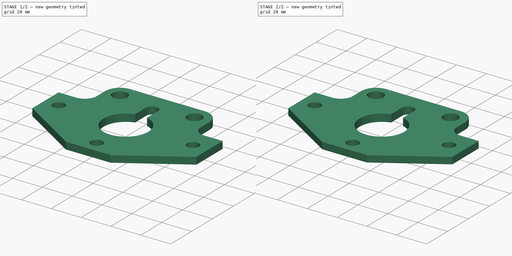
[diagram: build sequence overview — one tinted view per stage of 2, left to right]
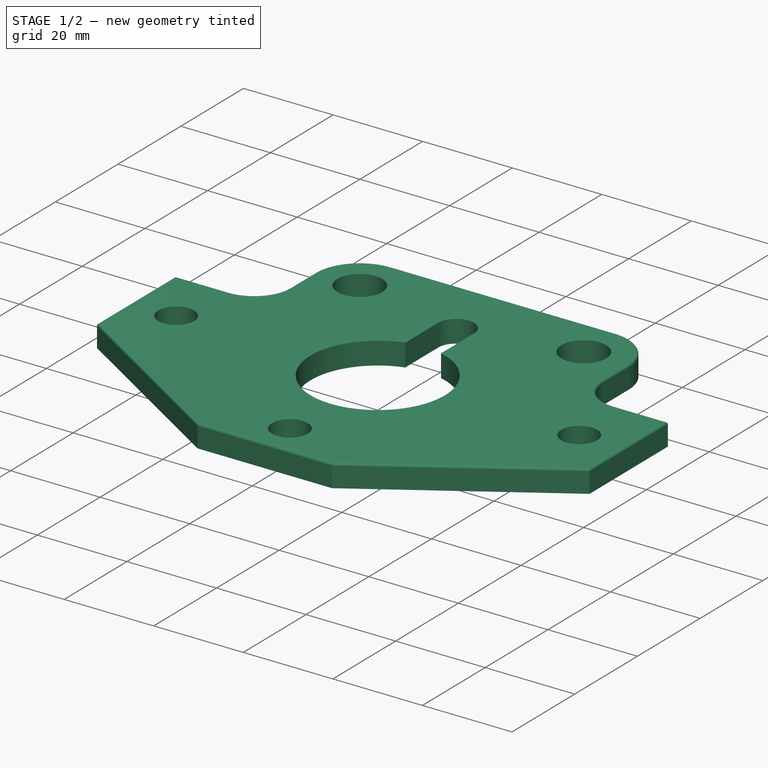
[diagram: stage 1 of 2 — iso view after this stage's code; geometry added in this stage tinted green]
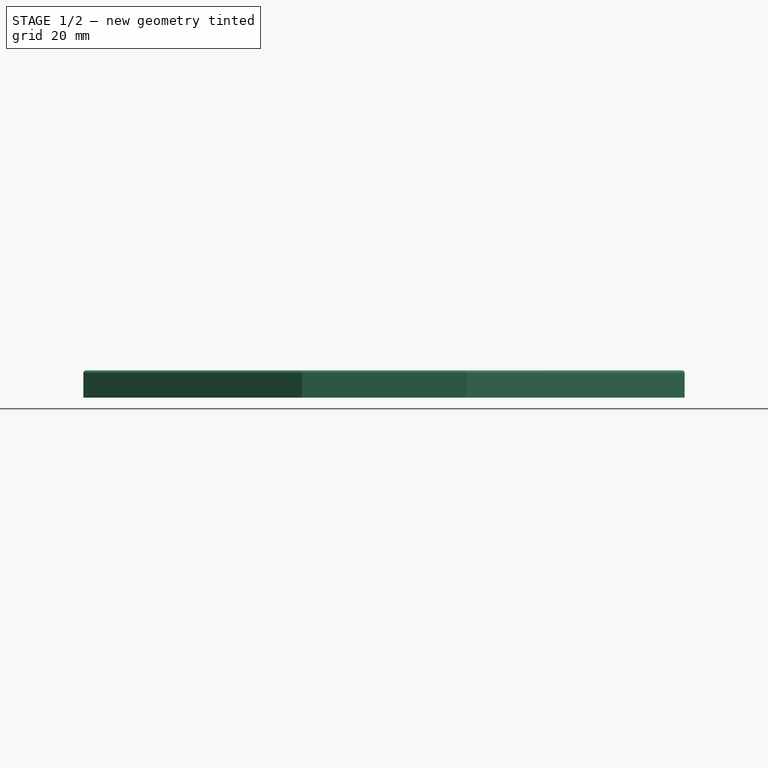
[diagram: stage 1 of 2 — front view after this stage's code; geometry added in this stage tinted green]
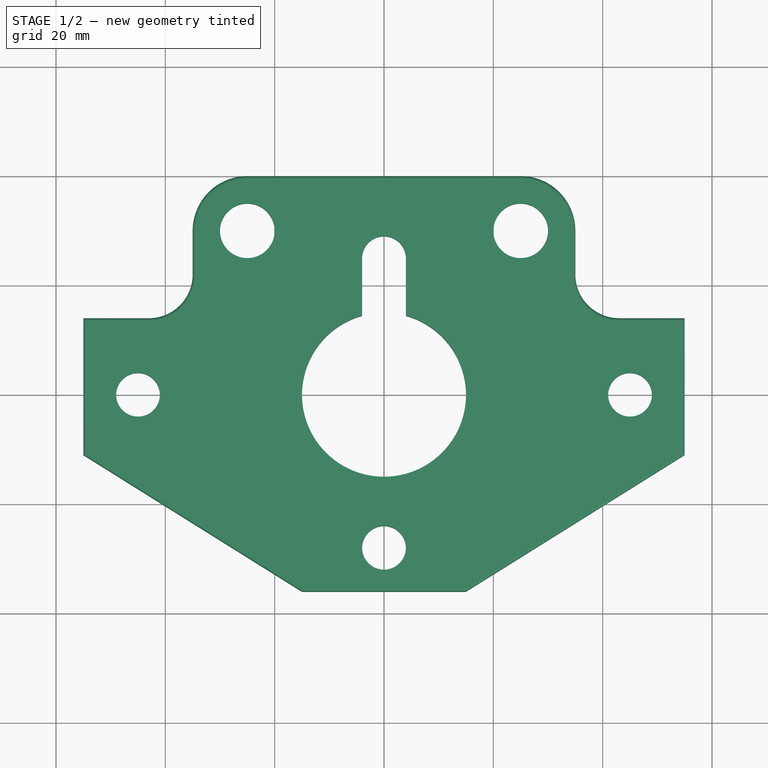
[diagram: stage 1 of 2 — top view after this stage's code; geometry added in this stage tinted green]
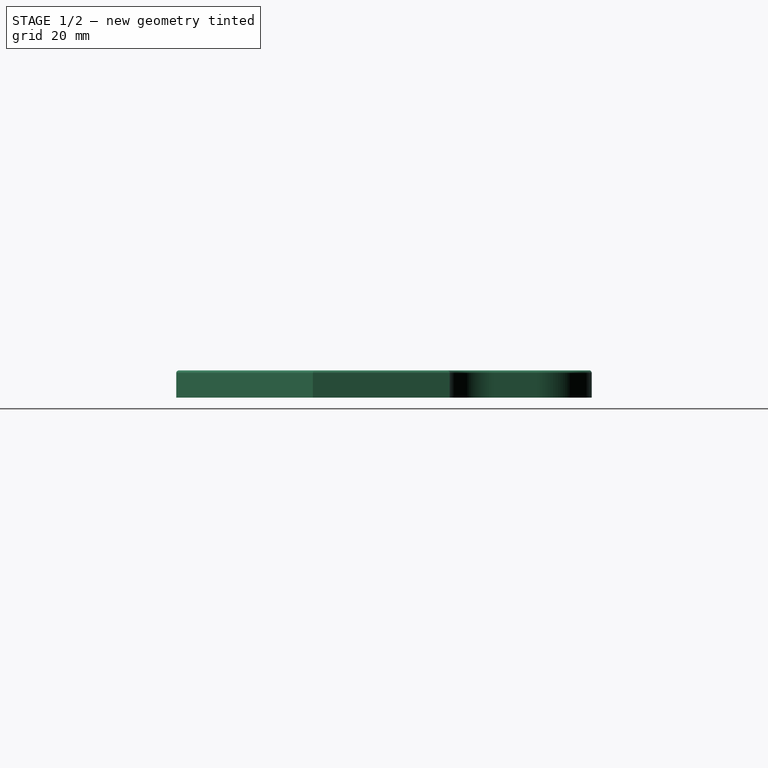
[diagram: stage 1 of 2 — right view after this stage's code; geometry added in this stage tinted green]
FCSTD DOCUMENT  (FreeCAD 0.16R6700 (Git))
Label: ejer2 final
License: All rights reserved
LicenseURL: http://en.wikipedia.org/wiki/All_rights_reserved
objects: PartDesign::Fillet×2, Sketcher::SketchObject×1, PartDesign::Pad×1
note: 5 computed .brp shape members not serialized (recipe doc carries the construction recipe); baked Part::Feature solids carry a one-line shape summary decoded from their .brp

FEATURE [Sketcher::SketchObject] Sketch
  sketch-geometry (23):
    g0: ArcOfCircle CenterX=0 CenterY=0 CenterZ=0 NormalX=0 NormalY=0 NormalZ=1 Radius=15 StartAngle=1.84073 EndAngle=7.58405
    g1: ArcOfCircle CenterX=0 CenterY=25 CenterZ=0 NormalX=0 NormalY=0 NormalZ=1 Radius=4 StartAngle=6.28319 EndAngle=9.42478
    g2: LineSegment StartX=-4 StartY=25 StartZ=0 EndX=-4 EndY=14.4568 EndZ=0
    g3: LineSegment StartX=4 StartY=25 StartZ=0 EndX=4 EndY=14.4568 EndZ=0
    g4: Circle CenterX=0 CenterY=-28 CenterZ=0 NormalX=0 NormalY=0 NormalZ=1 Radius=4
    g5: Circle CenterX=45 CenterY=0 CenterZ=0 NormalX=0 NormalY=0 NormalZ=1 Radius=4
    g6: Circle CenterX=-45 CenterY=0 CenterZ=0 NormalX=0 NormalY=0 NormalZ=1 Radius=4
    g7: Circle CenterX=25 CenterY=30 CenterZ=0 NormalX=0 NormalY=0 NormalZ=1 Radius=5
    g8: Circle CenterX=-25 CenterY=30 CenterZ=0 NormalX=0 NormalY=0 NormalZ=1 Radius=5
    g9: LineSegment StartX=-25 StartY=40 StartZ=0 EndX=25 EndY=40 EndZ=0
    g10: LineSegment StartX=35 StartY=30 StartZ=0 EndX=35 EndY=22 EndZ=0
    g11: LineSegment StartX=43 StartY=14 StartZ=0 EndX=55 EndY=14 EndZ=0
    g12: LineSegment StartX=55 StartY=14 StartZ=0 EndX=55 EndY=-11 EndZ=0
    g13: LineSegment StartX=55 StartY=-11 StartZ=0 EndX=15 EndY=-36 EndZ=0
    g14: LineSegment StartX=15 StartY=-36 StartZ=0 EndX=-15 EndY=-36 EndZ=0
    g15: LineSegment StartX=-15 StartY=-36 StartZ=0 EndX=-55 EndY=-11 EndZ=0
    g16: LineSegment StartX=-55 StartY=-11 StartZ=0 EndX=-55 EndY=14 EndZ=0
    g17: LineSegment StartX=-55 StartY=14 StartZ=0 EndX=-43 EndY=14 EndZ=0
    g18: LineSegment StartX=-35 StartY=22 StartZ=0 EndX=-35 EndY=30 EndZ=0
    g19: ArcOfCircle CenterX=43 CenterY=22 CenterZ=0 NormalX=0 NormalY=0 NormalZ=1 Radius=8 StartAngle=3.14159 EndAngle=4.71239
    g20: ArcOfCircle CenterX=25 CenterY=30 CenterZ=0 NormalX=0 NormalY=0 NormalZ=1 Radius=10 StartAngle=0 EndAngle=1.5708
    g21: ArcOfCircle CenterX=-25 CenterY=30 CenterZ=0 NormalX=0 NormalY=0 NormalZ=1 Radius=10 StartAngle=1.5708 EndAngle=3.14159
    g22: ArcOfCircle CenterX=-43 CenterY=22 CenterZ=0 NormalX=0 NormalY=0 NormalZ=1 Radius=8 StartAngle=4.71239 EndAngle=6.28319
  constraints (65):
    c: Coincident(g0,g-1)
    c: PointOnObject(g1,g-2)
    c: DistanceY(g-1,g1) = 25
    c: Radius(g0) = 15
    c: Radius(g1) = 4
    c: Vertical(g2)
    c: Vertical(g3)
    c: Coincident(g1,g3)
    c: Coincident(g1,g2)
    c: Tangent(g2,g1)
    c: Tangent(g3,g1)
    c: Coincident(g0,g2)
    c: Coincident(g0,g3)
    c: PointOnObject(g4,g-2)
    c: Radius(g4) = 4
    c: PointOnObject(g5,g-1)
    c: PointOnObject(g6,g-1)
    c: Radius(g6) = 4
    c: Equal(g6,g5)
    c: DistanceX(g6,g-1) = 45
    c: DistanceX(g-1,g5) = 45
    c: Radius(g7) = 5
    c: Equal(g7,g8)
    c: DistanceX(g8,g7) = 50
    c: Symmetric(g8,g7,g-2)
    c: Horizontal(g9)
    c: Vertical(g10)
    c: Horizontal(g11)
    c: Coincident(g11,g12)
    c: Vertical(g12)
    c: Coincident(g12,g13)
    c: Coincident(g13,g14)
    c: Horizontal(g14)
    c: Coincident(g14,g15)
    c: Coincident(g15,g16)
    c: Coincident(g16,g17)
    c: Horizontal(g17)
    c: Vertical(g16)
    c: Vertical(g18)
    c: DistanceY(g5,g11) = 14
    c: DistanceY(g6,g16) = 14
    c: Tangent(g10,g19) = -1.5708
    c: Tangent(g11,g19) = -1.5708
    c: Tangent(g9,g20) = 1.5708
    c: Tangent(g10,g20) = 1.5708
    c: Tangent(g9,g21) = 1.5708
    c: Tangent(g18,g21) = 1.5708
    c: Tangent(g18,g22) = -1.5708
    c: Tangent(g17,g22) = -1.5708
    c: Radius(g22) = 8
    c: Radius(g19) = 8
    c: Radius(g20) = 10
    c: Radius(g21) = 10
    c: DistanceY(g8,g9) = 10
    c: DistanceX(g18,g8) = 10
    c: DistanceX(g7,g10) = 10
    c: DistanceY(g13,g4) = 8
    c: DistanceX(g14,g14) = 30
    c: DistanceY(g12,g12) = 25
    c: DistanceY(g16,g16) = 25
    c: DistanceY(g14,g15) = 25
    c: DistanceY(g16,g9) = 26
    c: DistanceX(g15,g12) = 110
    c: DistanceX(g15,g-1) = 55
    c: Symmetric(g13,g14,g-2)
FEATURE [PartDesign::Pad] Pad
  Length = 5
  Length2 = 100
  Sketch = -> Sketch
  Type = 0
FEATURE [PartDesign::Fillet] Fillet
  Base = -> Pad [Edge31,Edge28,Edge25,Edge22,Edge19,Edge16,Edge13,Edge10,Edge7,Edge4,Edge42,Edge40,Edge37,Edge34]
  Radius = 0.5
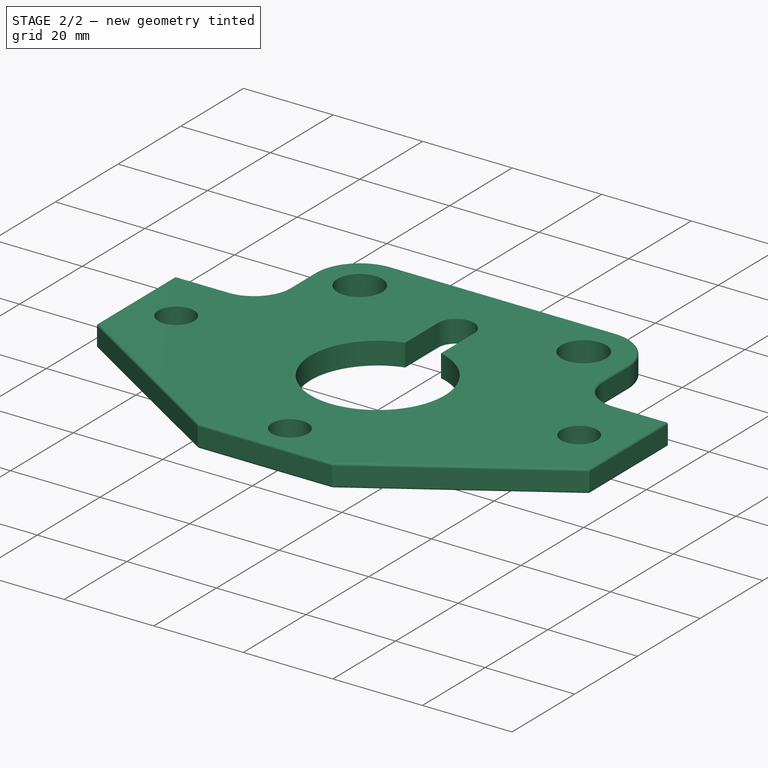
[diagram: stage 2 of 2 — iso view after this stage's code; geometry added in this stage tinted green]
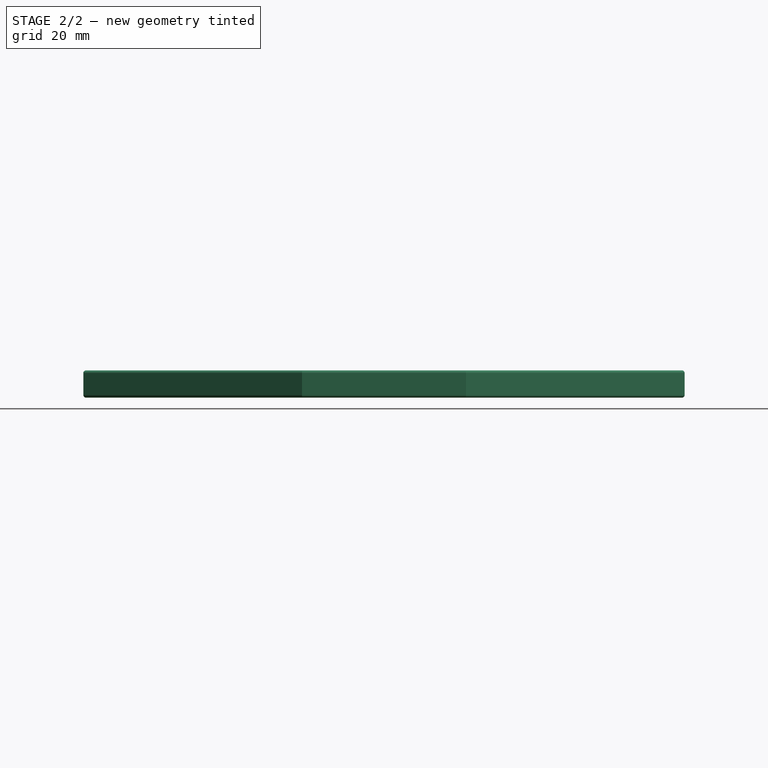
[diagram: stage 2 of 2 — front view after this stage's code; geometry added in this stage tinted green]
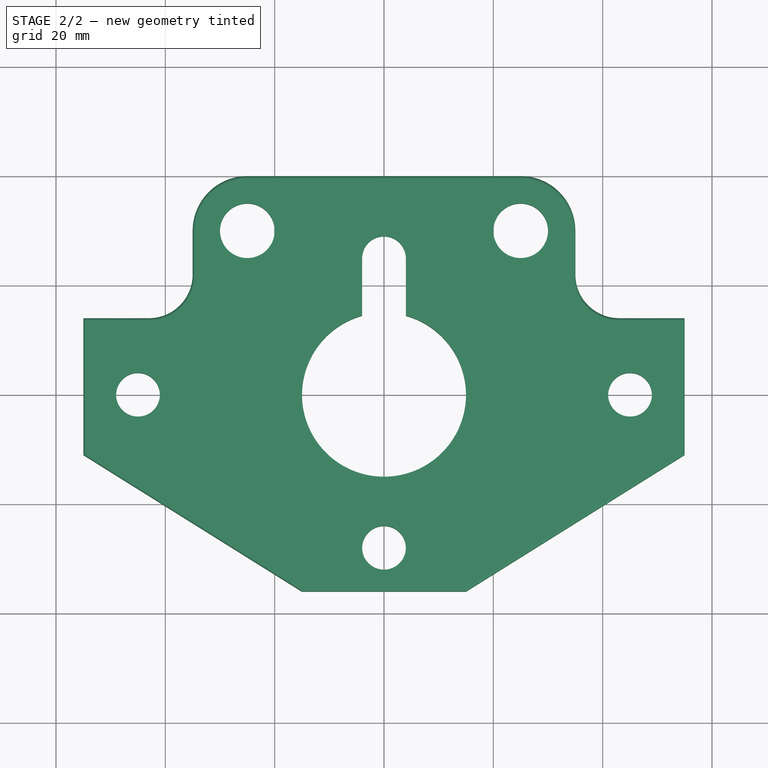
[diagram: stage 2 of 2 — top view after this stage's code; geometry added in this stage tinted green]
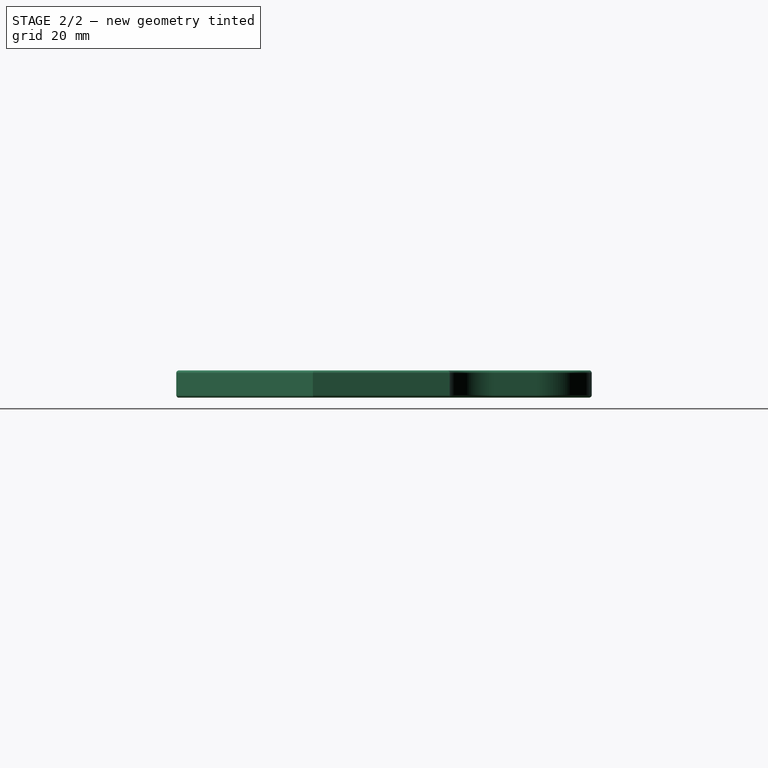
[diagram: stage 2 of 2 — right view after this stage's code; geometry added in this stage tinted green]
FEATURE [PartDesign::Fillet] Fillet001
  Base = -> Fillet [Edge17,Edge18,Edge19,Edge20,Edge21,Edge22,Edge6,Edge3,Edge11,Edge12,Edge13,Edge14,Edge15,Edge16]
  Radius = 0.5
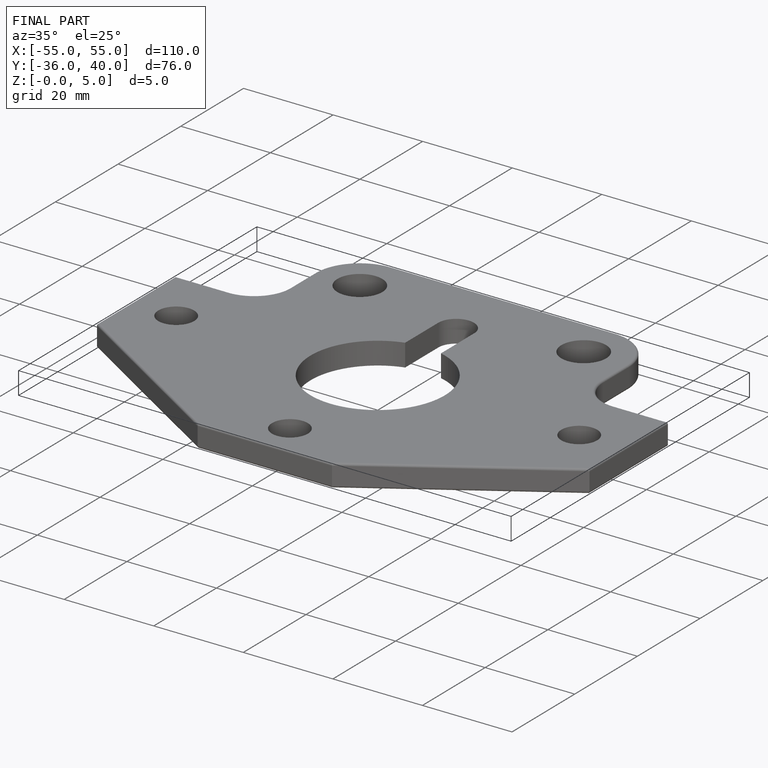
[diagram: finished part — iso view with bounding-box wireframe]
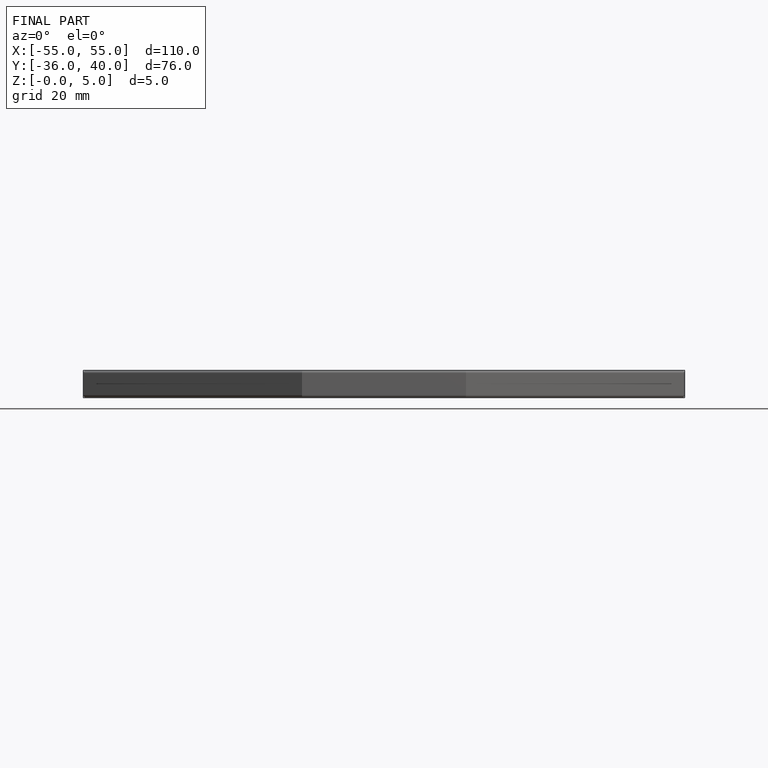
[diagram: finished part — front view with bounding-box wireframe]
